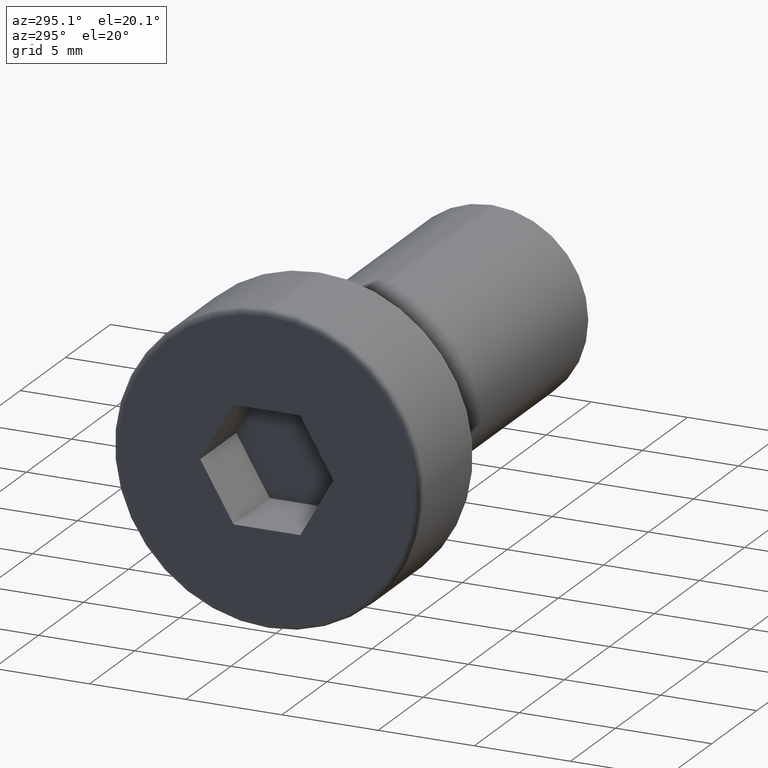
[diagram: clean part render]
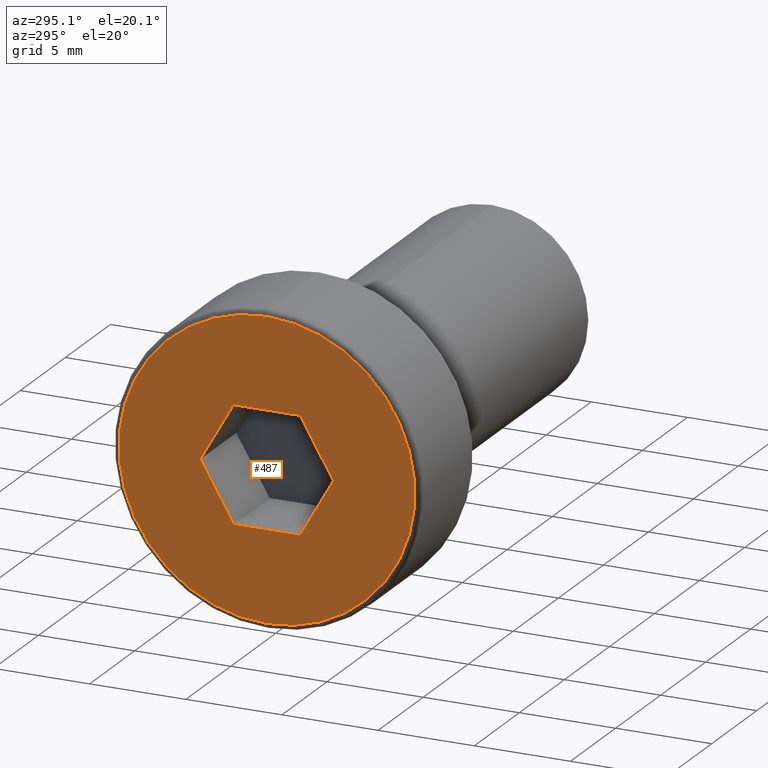
[diagram: same view with one face highlighted and labeled with its STEP entity id]
A machine part, auxiliary view. The second image highlights one B-rep face of the part: STEP entity #487.
In plain terms, the highlighted planar face has unit normal (1, 0, 0).
Its self-contained STEP definition (entity closure, byte-faithful):
#5 = DIRECTION ( 'NONE',  ( -0.0000000000000000000, -1.000000000000000000, -0.0000000000000000000 ) ) ;
#16 = DIRECTION ( 'NONE',  ( -1.000000000000000000, -0.0000000000000000000, -0.0000000000000000000 ) ) ;
#30 = DIRECTION ( 'NONE',  ( -0.0000000000000000000, -0.4999999999999999400, 0.8660254037844387100 ) ) ;
#39 = EDGE_CURVE ( 'NONE', #337, #84, #540, .T. ) ;
#45 = ORIENTED_EDGE ( 'NONE', *, *, #39, .F. ) ;
#51 = LINE ( 'NONE', #168, #245 ) ;
#64 = VECTOR ( 'NONE', #509, 1000.000000000000000 ) ;
#66 = AXIS2_PLACEMENT_3D ( 'NONE', #280, #266, #412 ) ;
#68 = CARTESIAN_POINT ( 'NONE',  ( -6.000000000000000000, 1.732050807568654900, 2.999999999999611400 ) ) ;
#74 = LINE ( 'NONE', #68, #389 ) ;
#75 = VECTOR ( 'NONE', #644, 1000.000000000000100 ) ;
#79 = VERTEX_POINT ( 'NONE', #236 ) ;
#83 = CARTESIAN_POINT ( 'NONE',  ( -6.000000000000000000, -1.732050807568653800, 2.999999999999613200 ) ) ;
#84 = VERTEX_POINT ( 'NONE', #387 ) ;
#168 = CARTESIAN_POINT ( 'NONE',  ( -6.000000000000000000, -1.732050807568653800, 2.999999999999613200 ) ) ;
#193 = DIRECTION ( 'NONE',  ( 0.0000000000000000000, 0.0000000000000000000, -1.000000000000000000 ) ) ;
#217 = CARTESIAN_POINT ( 'NONE',  ( -6.000000000000000000, -3.464101615137309900, 0.0000000000000000000 ) ) ;
#236 = CARTESIAN_POINT ( 'NONE',  ( -6.000000000000000000, -1.732050807568655800, -2.999999999999614100 ) ) ;
#238 = ORIENTED_EDGE ( 'NONE', *, *, #542, .F. ) ;
#245 = VECTOR ( 'NONE', #538, 1000.000000000000000 ) ;
#266 = DIRECTION ( 'NONE',  ( 1.000000000000000000, 0.0000000000000000000, 0.0000000000000000000 ) ) ;
#269 = AXIS2_PLACEMENT_3D ( 'NONE', #375, #567, #193 ) ;
#278 = EDGE_CURVE ( 'NONE', #602, #787, #462, .T. ) ;
#280 = CARTESIAN_POINT ( 'NONE',  ( -6.000000000000000000, 0.0000000000000000000, 0.0000000000000000000 ) ) ;
#311 = EDGE_CURVE ( 'NONE', #84, #526, #562, .T. ) ;
#325 = EDGE_LOOP ( 'NONE', ( #238, #725, #496, #711, #45, #613 ) ) ;
#337 = VERTEX_POINT ( 'NONE', #706 ) ;
#339 = CARTESIAN_POINT ( 'NONE',  ( -6.000000000000000000, 0.0000000000000000000, 0.0000000000000000000 ) ) ;
#370 = ORIENTED_EDGE ( 'NONE', *, *, #460, .T. ) ;
#375 = CARTESIAN_POINT ( 'NONE',  ( -6.000000000000000000, 0.0000000000000000000, 0.0000000000000000000 ) ) ;
#387 = CARTESIAN_POINT ( 'NONE',  ( -6.000000000000000000, 3.464101615137311200, -1.734723475976807100E-015 ) ) ;
#389 = VECTOR ( 'NONE', #779, 1000.000000000000000 ) ;
#407 = EDGE_CURVE ( 'NONE', #79, #773, #635, .T. ) ;
#412 = DIRECTION ( 'NONE',  ( 0.0000000000000000000, 0.0000000000000000000, -1.000000000000000000 ) ) ;
#415 = VECTOR ( 'NONE', #5, 1000.000000000000000 ) ;
#420 = CARTESIAN_POINT ( 'NONE',  ( -6.000000000000000000, 0.0000000000000000000, -7.700000000000000200 ) ) ;
#434 = FACE_BOUND ( 'NONE', #325, .T. ) ;
#452 = CIRCLE ( 'NONE', #504, 7.700000000000000200 ) ;
#460 = EDGE_CURVE ( 'NONE', #787, #602, #452, .T. ) ;
#462 = CIRCLE ( 'NONE', #269, 7.700000000000000200 ) ;
#471 = VECTOR ( 'NONE', #30, 999.9999999999998900 ) ;
#485 = VERTEX_POINT ( 'NONE', #83 ) ;
#487 = ADVANCED_FACE ( 'NONE', ( #434, #577 ), #641, .F. ) ;
#496 = ORIENTED_EDGE ( 'NONE', *, *, #595, .F. ) ;
#499 = EDGE_CURVE ( 'NONE', #485, #337, #74, .T. ) ;
#503 = ORIENTED_EDGE ( 'NONE', *, *, #278, .T. ) ;
#504 = AXIS2_PLACEMENT_3D ( 'NONE', #339, #16, #728 ) ;
#509 = DIRECTION ( 'NONE',  ( -0.0000000000000000000, -0.5000000000000008900, -0.8660254037844381500 ) ) ;
#519 = CARTESIAN_POINT ( 'NONE',  ( -6.000000000000000000, 3.464101615137311200, -1.734723475976807100E-015 ) ) ;
#526 = VERTEX_POINT ( 'NONE', #700 ) ;
#536 = CARTESIAN_POINT ( 'NONE',  ( -6.000000000000000000, -1.732050807568655800, -2.999999999999614100 ) ) ;
#538 = DIRECTION ( 'NONE',  ( -0.0000000000000000000, 0.5000000000000004400, 0.8660254037844383700 ) ) ;
#540 = LINE ( 'NONE', #519, #75 ) ;
#542 = EDGE_CURVE ( 'NONE', #773, #485, #51, .T. ) ;
#562 = LINE ( 'NONE', #580, #64 ) ;
#567 = DIRECTION ( 'NONE',  ( -1.000000000000000000, -0.0000000000000000000, -0.0000000000000000000 ) ) ;
#577 = FACE_OUTER_BOUND ( 'NONE', #585, .T. ) ;
#580 = CARTESIAN_POINT ( 'NONE',  ( -6.000000000000000000, 1.732050807568653600, -2.999999999999614100 ) ) ;
#585 = EDGE_LOOP ( 'NONE', ( #503, #370 ) ) ;
#595 = EDGE_CURVE ( 'NONE', #526, #79, #752, .T. ) ;
#602 = VERTEX_POINT ( 'NONE', #420 ) ;
#613 = ORIENTED_EDGE ( 'NONE', *, *, #499, .F. ) ;
#635 = LINE ( 'NONE', #217, #471 ) ;
#641 = PLANE ( 'NONE',  #66 ) ;
#644 = DIRECTION ( 'NONE',  ( -0.0000000000000000000, 0.5000000000000005600, -0.8660254037844382600 ) ) ;
#700 = CARTESIAN_POINT ( 'NONE',  ( -6.000000000000000000, 1.732050807568653600, -2.999999999999614100 ) ) ;
#704 = CARTESIAN_POINT ( 'NONE',  ( -6.000000000000000000, -3.464101615137309900, 0.0000000000000000000 ) ) ;
#706 = CARTESIAN_POINT ( 'NONE',  ( -6.000000000000000000, 1.732050807568654900, 2.999999999999611400 ) ) ;
#711 = ORIENTED_EDGE ( 'NONE', *, *, #311, .F. ) ;
#725 = ORIENTED_EDGE ( 'NONE', *, *, #407, .F. ) ;
#728 = DIRECTION ( 'NONE',  ( 0.0000000000000000000, 0.0000000000000000000, -1.000000000000000000 ) ) ;
#752 = LINE ( 'NONE', #536, #415 ) ;
#773 = VERTEX_POINT ( 'NONE', #704 ) ;
#778 = CARTESIAN_POINT ( 'NONE',  ( -6.000000000000000000, 9.613477373306721400E-016, 7.700000000000000200 ) ) ;
#779 = DIRECTION ( 'NONE',  ( -0.0000000000000000000, 1.000000000000000000, -5.007715329124508700E-016 ) ) ;
#787 = VERTEX_POINT ( 'NONE', #778 ) ;